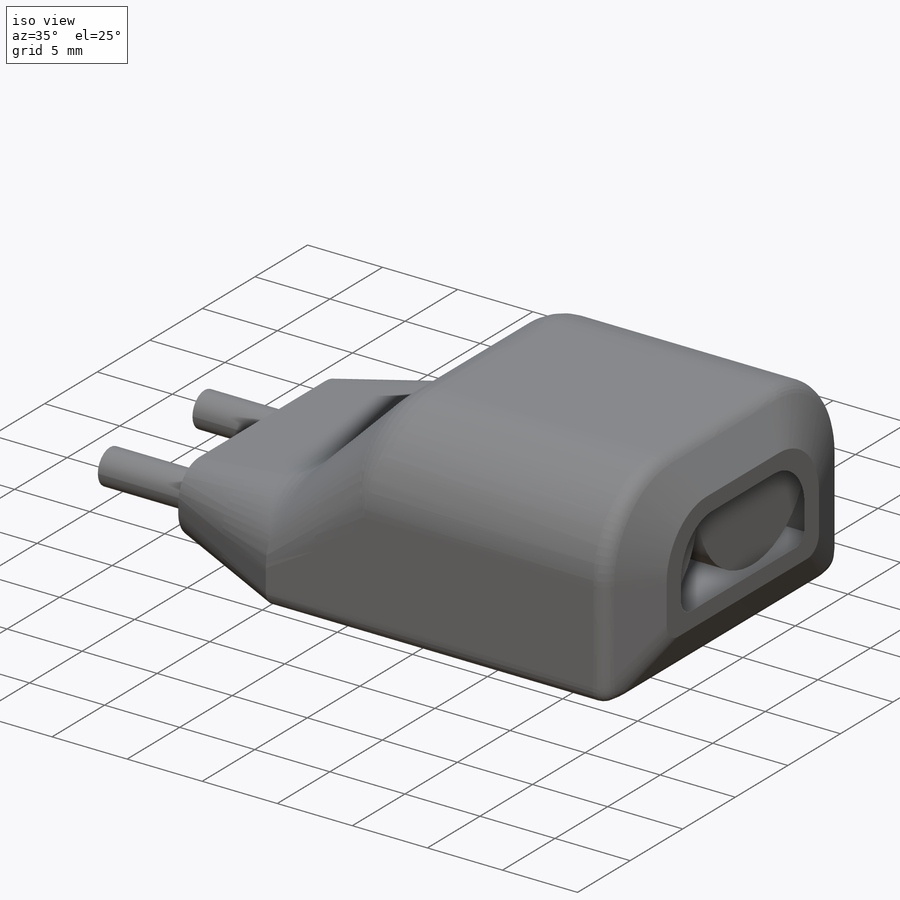
[diagram: iso view]
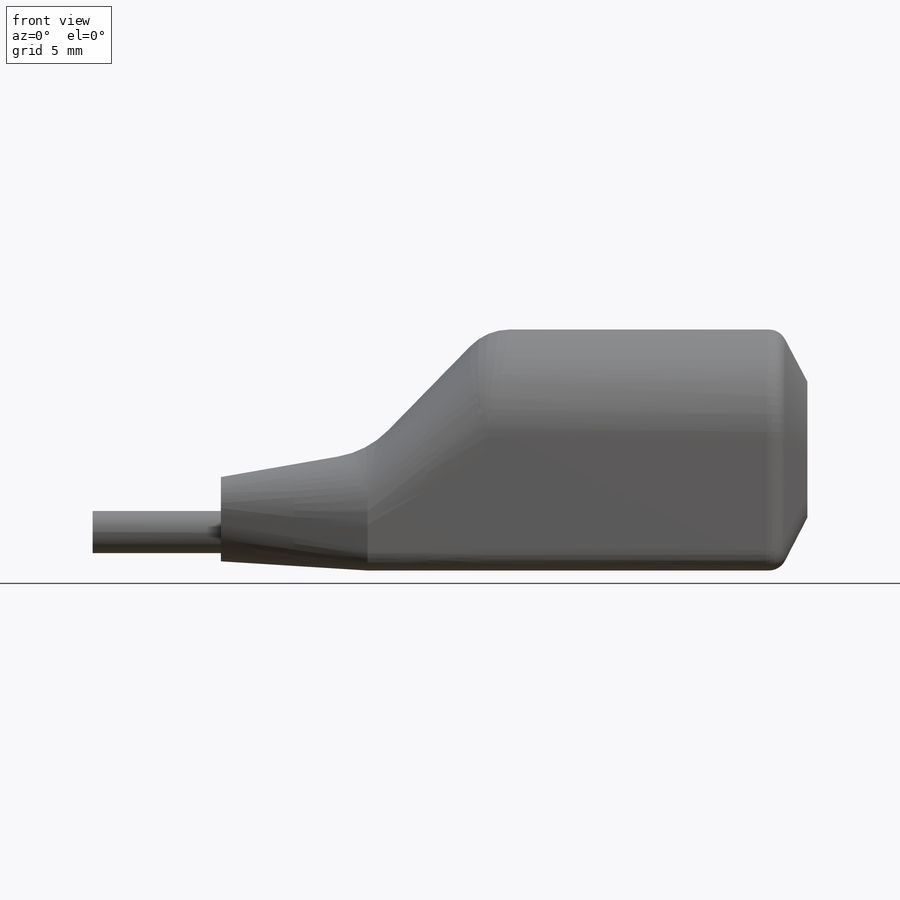
[diagram: front view]
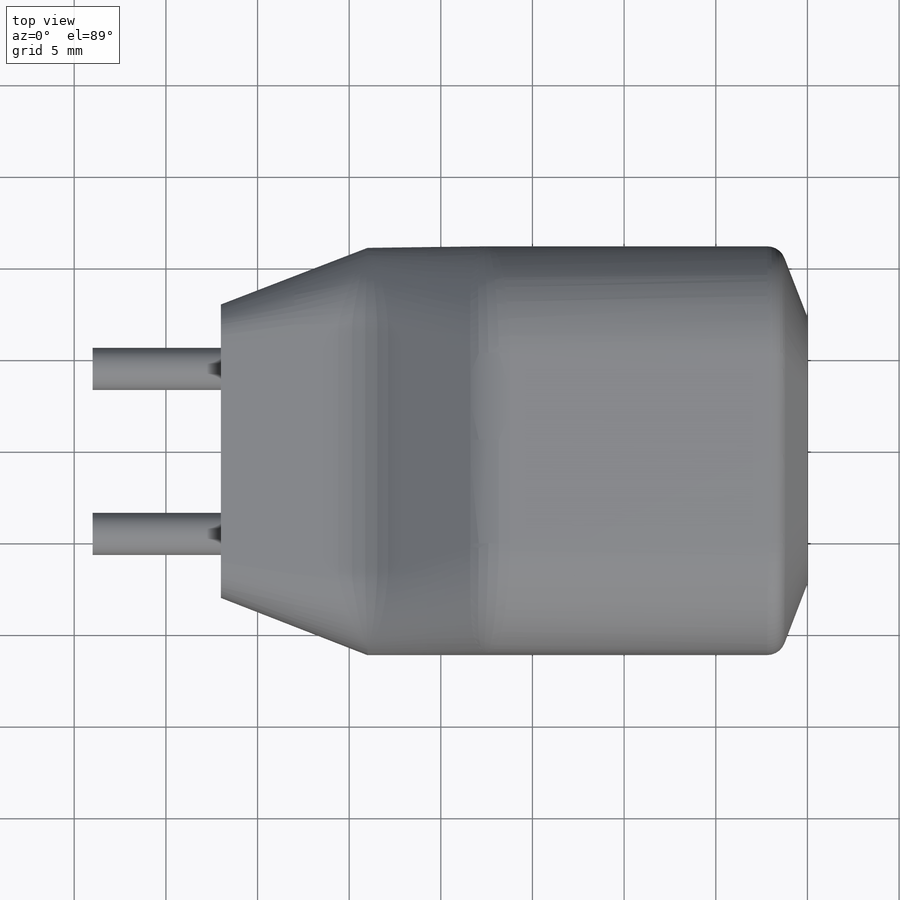
[diagram: top view]
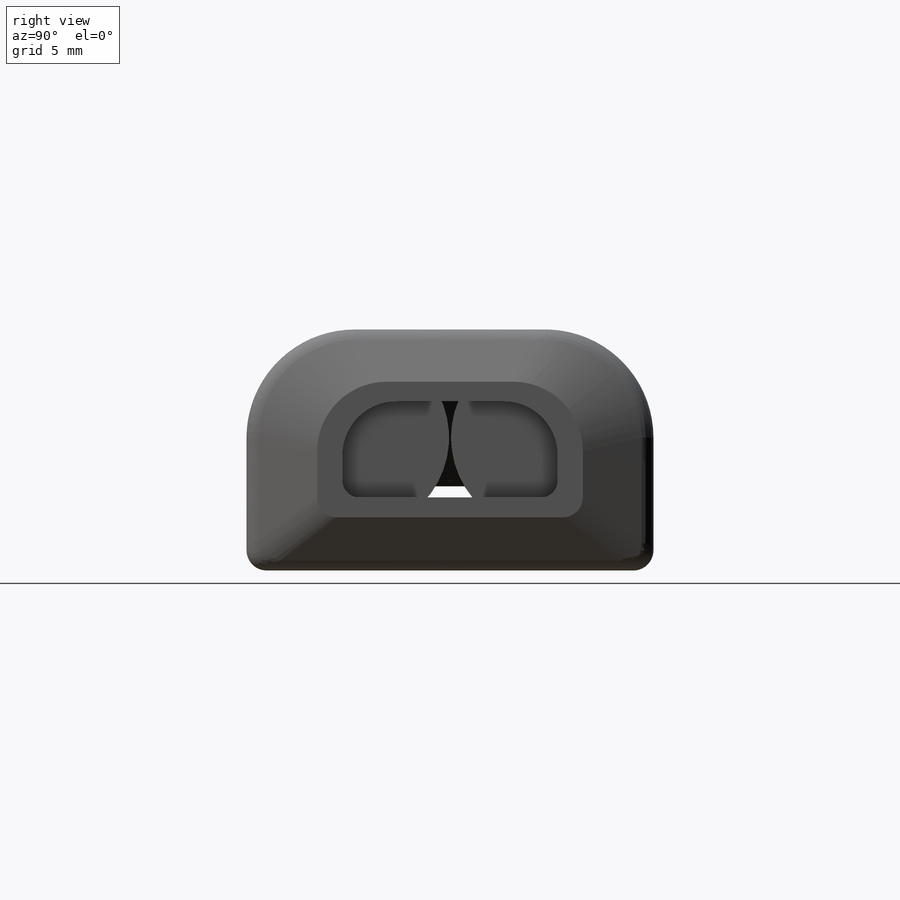
[diagram: right view]
SOLIDWORKS PART (.sldprt)
format: sldprt  version: not decoded by parser v0  size: 715,264 bytes
history: native  units: mm
features: sketch x16, plane x8, extrude x3, fillet x3, material x1, shell x1 (+10 scaffold rows collapsed; 1 parser-record rows omitted)
feature tree (43):
  scaffold x10  (default folders/planes/origin — collapsed)
  material  "Material <nicht festgelegt>"
  plane  "Ebene vorne"
  plane  "Ebene oben"
  plane  "Ebene rechts"
  sketch  "Skizze2"  dims[D3=10.3mm D1=1.4mm D2=21.0mm D4=10.4mm D5=5.25mm D6=1.5mm]
  extrude  "Aufsatz-Linear austragen1"  Depth=14mm
  sketch  "Skizze2<3>"
  extrude  "Aufsatz-Linear austragen2"  [1 undecoded]
  sketch  "Skizze2<4>"  dims[D1=8.0mm D2=14.0mm]
  sketch  "Skizze3"  dims[D1=2.3mm D2=9.0mm D3=1.5mm]
  extrude  "Aufsatz-Linear austragen3"  Depth=15mm
  parser-record x1  (decoder bookkeeping rows leaked as tree rows — omitted from the tree; the rows remain in map.json)
  plane  "Ebene1"  Offset=2mm
  plane  "Ebene2"  Offset=0.5mm
  plane  "Ebene3"  Offset=0.5mm
  plane  "Ebene4"
  plane  "Ebene5"  Offset=8mm
  sketch  "Skizze4"  dims[c1.D4=3.8mm c1.D5=1.1mm c1.D1=14.5mm c1.D2=~6.570949mm c2.D2=2.3deg c3.D2=2.3mm c3.D3=7.4mm c3.D6=3.3mm c4.D3=7.4mm]
  sketch  "Skizze5"  dims[D1=1.1mm D2=0.5mm D3=0.5mm]
  sketch  "Skizze6"
  sketch  "Skizze8"  dims[D2=4.0mm D1=6.5mm]
  sketch  "Skizze9"  dims[c1.D2=2.0mm c1.D1=16.0mm c2.D2=4.6mm c2.D3=0.1mm c2.D4=4.6mm]
  sketch  "3D-Skizze1"
  sketch  "Ausformung4"
  sketch  "Skizze5<4>"
  sketch  "Ausformung7"
  sketch  "Skizze6<3>"
  sketch  "Ausformung8"
  sketch  "Skizze8<2>"
  fillet  "Verrundung8"  Radius=1mm
  fillet  "Verrundung9"  Radius=3mm
  fillet  "Verrundung10"  Radius=5mm
  shell  "Wandung3"  Thickness=0.5mm
decode coverage: 13 of 23 modeling features carry decoded parameters
note: ~ marks probable driven/reference dimensions
note: 1 parameter value undecoded
note: suppression state not decoded; provenance and decode notes live in map.json
